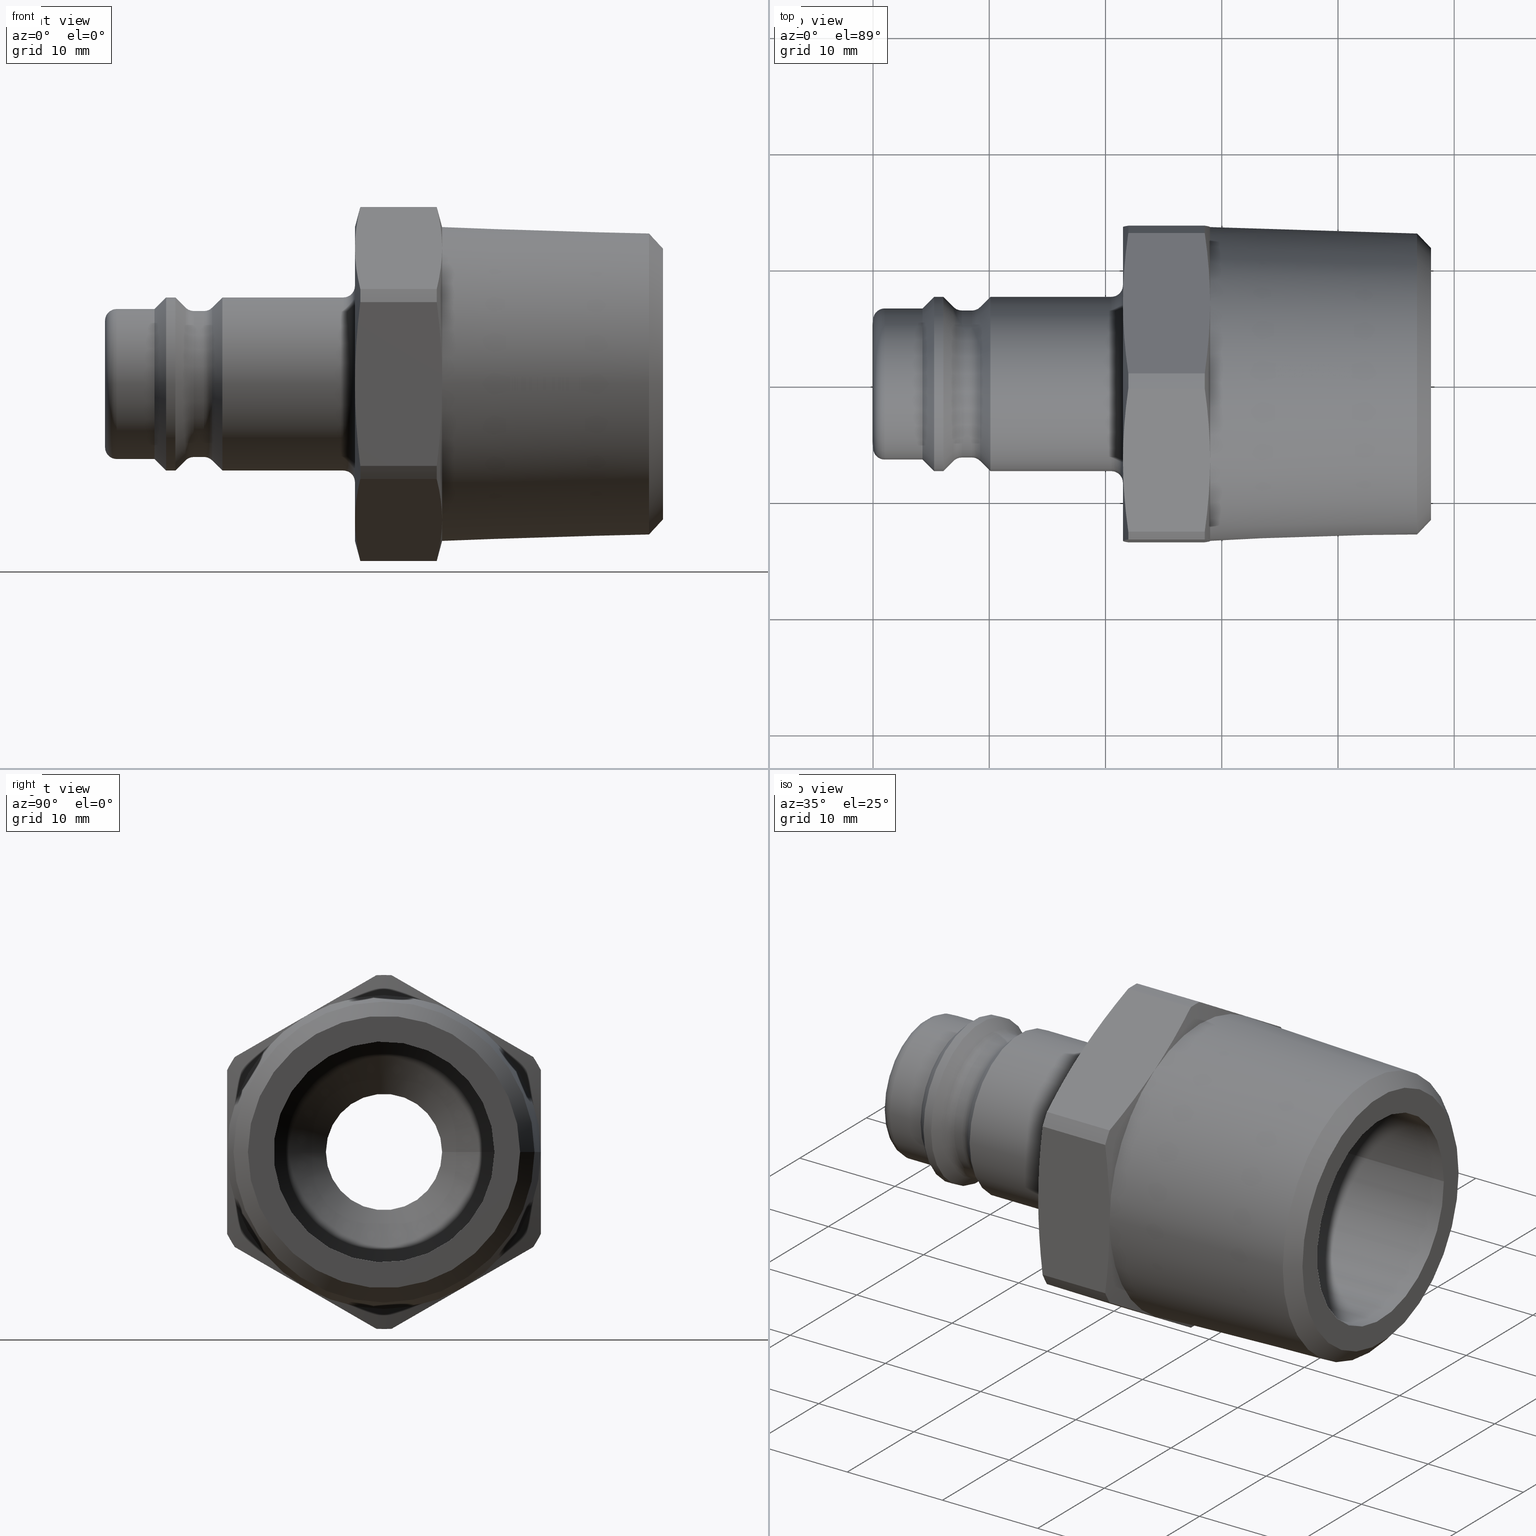
[diagram: canonical four-view strip — front | top / right | iso, engineering-drawing reading convention]
A machine part, canonical four-view strip (front | top / right | iso — engineering-drawing reading convention). The complete STEP part file that produces these views, byte-faithful:
ISO-10303-21;
HEADER;
/****************************************************************
 * Generated by software with PDE/Lib inside                    *
 * PDElib Version v51a, created Thu 01/14/2010                  *
 * ITI Transcendata (http://www.transcendata.com/)              *
 ****************************************************************/
FILE_DESCRIPTION((''),'2;1');
FILE_NAME('J:\\3D Zeichnungen_step\\Serie 27\\27sfak26sxn.stp','2013-05-28T13:29:26',('IA176480'),(''),'Autodesk Inventor 2011','Autodesk Inventor 2011','');
FILE_SCHEMA(('AUTOMOTIVE_DESIGN { 1 0 10303 214 1 1 1 1 }'));
ENDSEC;
DATA;
#5=APPLICATION_CONTEXT('automotive design');
#6=APPLICATION_PROTOCOL_DEFINITION('International Standard','automotive_design',2001,#5);
#7=PRODUCT_CONTEXT('',#5,'mechanical');
#8=PRODUCT('D106715','D106715',$,(#7));
#9=PRODUCT_RELATED_PRODUCT_CATEGORY('part',$,(#8));
#10=PRODUCT_DEFINITION_FORMATION('',$,#8);
#11=PRODUCT_DEFINITION_CONTEXT('part definition',#5,'design');
#12=PRODUCT_DEFINITION('',$,#10,#11);
#18=(NAMED_UNIT(*)PLANE_ANGLE_UNIT()SI_UNIT($,.RADIAN.));
#19=DIMENSIONAL_EXPONENTS(0.0,0.0,0.0,0.0,0.0,0.0,0.0);
#20=PLANE_ANGLE_MEASURE_WITH_UNIT(PLANE_ANGLE_MEASURE(0.017453292500000),#18);
#24=(CONVERSION_BASED_UNIT('DEGREE',#20)NAMED_UNIT(#19)PLANE_ANGLE_UNIT());
#28=(NAMED_UNIT(*)SI_UNIT($,.STERADIAN.)SOLID_ANGLE_UNIT());
#32=(LENGTH_UNIT()NAMED_UNIT(*)SI_UNIT(.MILLI.,.METRE.));
#34=UNCERTAINTY_MEASURE_WITH_UNIT(LENGTH_MEASURE(0.010000000000000),#32,'DISTANCE_ACCURACY_VALUE','');
#36=(GEOMETRIC_REPRESENTATION_CONTEXT(3)GLOBAL_UNCERTAINTY_ASSIGNED_CONTEXT((#34))GLOBAL_UNIT_ASSIGNED_CONTEXT((#24,#28,#32))REPRESENTATION_CONTEXT('None','None'));
#37=AXIS2_PLACEMENT_3D('',#38,#39,#40);
#38=CARTESIAN_POINT('',(0.0,0.0,0.0));
#39=DIRECTION('',(0.0,0.0,1.0));
#40=DIRECTION('',(1.0,0.0,0.0));
#41=SHAPE_REPRESENTATION('',(#37),#36);
#42=PRODUCT_DEFINITION_SHAPE('','',#12);
#43=SHAPE_DEFINITION_REPRESENTATION(#42,#41);
#49=(NAMED_UNIT(*)PLANE_ANGLE_UNIT()SI_UNIT($,.RADIAN.));
#50=DIMENSIONAL_EXPONENTS(0.0,0.0,0.0,0.0,0.0,0.0,0.0);
#51=PLANE_ANGLE_MEASURE_WITH_UNIT(PLANE_ANGLE_MEASURE(0.017453292500000),#49);
#55=(CONVERSION_BASED_UNIT('DEGREE',#51)NAMED_UNIT(#50)PLANE_ANGLE_UNIT());
#59=(NAMED_UNIT(*)SI_UNIT($,.STERADIAN.)SOLID_ANGLE_UNIT());
#63=(LENGTH_UNIT()NAMED_UNIT(*)SI_UNIT(.MILLI.,.METRE.));
#65=UNCERTAINTY_MEASURE_WITH_UNIT(LENGTH_MEASURE(0.000001000000000),#63,'DISTANCE_ACCURACY_VALUE','');
#67=(GEOMETRIC_REPRESENTATION_CONTEXT(3)GLOBAL_UNCERTAINTY_ASSIGNED_CONTEXT((#65))GLOBAL_UNIT_ASSIGNED_CONTEXT((#55,#59,#63))REPRESENTATION_CONTEXT('','3D'));
#68=CARTESIAN_POINT('',(29.438941219643269,6.749999999999991,-11.691342951089929));
#69=DIRECTION('',(0.0,-0.499999999999999,0.866025403784439));
#70=DIRECTION('',(0.0,-0.866025403784439,-0.499999999999999));
#71=AXIS2_PLACEMENT_3D('',#68,#69,#70);
#72=PLANE('',#71);
#73=CARTESIAN_POINT('',(21.962212356943684,12.846143760607999,-8.171732709884246));
#74=VERTEX_POINT('',#73);
#75=CARTESIAN_POINT('',(21.500000000000004,6.749999999999990,-11.691342951089929));
#76=VERTEX_POINT('',#75);
#77=CARTESIAN_POINT('',(21.962212356943684,12.846143760607987,-8.171732709884253));
#78=CARTESIAN_POINT('',(21.500000000000004,9.615028399241366,-10.037218033552005));
#79=CARTESIAN_POINT('',(21.500000000000004,6.749999999999990,-11.691342951089929));
#87=(BOUNDED_CURVE()B_SPLINE_CURVE(2,(#77,#78,#79),.UNSPECIFIED.,.F.,.U.)B_SPLINE_CURVE_WITH_KNOTS((3,3),(0.0,0.705781608914781),.UNSPECIFIED.)CURVE()GEOMETRIC_REPRESENTATION_ITEM()RATIONAL_B_SPLINE_CURVE((1.0,1.031449896451077,1.0))REPRESENTATION_ITEM(''));
#88=EDGE_CURVE('',#74,#76,#87,.T.);
#89=ORIENTED_EDGE('',*,*,#88,.F.);
#90=CARTESIAN_POINT('',(28.537787643056323,12.846143760607999,-8.171732709884246));
#91=VERTEX_POINT('',#90);
#92=CARTESIAN_POINT('',(28.537787643056323,12.846143760607999,-8.171732709884246));
#93=DIRECTION('',(-1.0,0.0,0.0));
#94=VECTOR('',#93,6.575575286112638);
#95=LINE('',#92,#94);
#96=EDGE_CURVE('',#91,#74,#95,.T.);
#97=ORIENTED_EDGE('',*,*,#96,.F.);
#98=CARTESIAN_POINT('',(28.999999999999865,6.749999999999990,-11.691342951089929));
#99=VERTEX_POINT('',#98);
#100=CARTESIAN_POINT('',(29.000000000000004,6.749999999999990,-11.691342951089929));
#101=CARTESIAN_POINT('',(29.000000000000004,9.615028399241405,-10.037218033551978));
#102=CARTESIAN_POINT('',(28.537787643056319,12.846143760608019,-8.171732709884232));
#110=(BOUNDED_CURVE()B_SPLINE_CURVE(2,(#100,#101,#102),.UNSPECIFIED.,.F.,.U.)B_SPLINE_CURVE_WITH_KNOTS((3,3),(0.705781608914785,1.411563217829570),.UNSPECIFIED.)CURVE()GEOMETRIC_REPRESENTATION_ITEM()RATIONAL_B_SPLINE_CURVE((1.0,1.031449896451022,1.0))REPRESENTATION_ITEM(''));
#111=EDGE_CURVE('',#99,#91,#110,.T.);
#112=ORIENTED_EDGE('',*,*,#111,.F.);
#113=CARTESIAN_POINT('',(28.537787643056323,0.653856239391981,-15.210953192295612));
#114=VERTEX_POINT('',#113);
#115=CARTESIAN_POINT('',(28.537787643056319,0.653856239391960,-15.210953192295626));
#116=CARTESIAN_POINT('',(29.000000000000004,3.884971600758574,-13.345467868627880));
#117=CARTESIAN_POINT('',(29.000000000000004,6.749999999999990,-11.691342951089929));
#125=(BOUNDED_CURVE()B_SPLINE_CURVE(2,(#115,#116,#117),.UNSPECIFIED.,.F.,.U.)B_SPLINE_CURVE_WITH_KNOTS((3,3),(0.0,0.705781608914785),.UNSPECIFIED.)CURVE()GEOMETRIC_REPRESENTATION_ITEM()RATIONAL_B_SPLINE_CURVE((1.0,1.031449896451015,1.0))REPRESENTATION_ITEM(''));
#126=EDGE_CURVE('',#114,#99,#125,.T.);
#127=ORIENTED_EDGE('',*,*,#126,.F.);
#128=CARTESIAN_POINT('',(21.962212356943684,0.653856239391981,-15.210953192295612));
#129=VERTEX_POINT('',#128);
#130=CARTESIAN_POINT('',(21.962212356943684,0.653856239391981,-15.210953192295612));
#131=DIRECTION('',(1.0,0.0,0.0));
#132=VECTOR('',#131,6.575575286112638);
#133=LINE('',#130,#132);
#134=EDGE_CURVE('',#129,#114,#133,.T.);
#135=ORIENTED_EDGE('',*,*,#134,.F.);
#136=CARTESIAN_POINT('',(21.500000000000004,6.749999999999990,-11.691342951089929));
#137=CARTESIAN_POINT('',(21.500000000000004,3.884971600758613,-13.345467868627853));
#138=CARTESIAN_POINT('',(21.962212356943684,0.653856239391996,-15.210953192295607));
#146=(BOUNDED_CURVE()B_SPLINE_CURVE(2,(#136,#137,#138),.UNSPECIFIED.,.F.,.U.)B_SPLINE_CURVE_WITH_KNOTS((3,3),(0.705781608914781,1.411563217829562),.UNSPECIFIED.)CURVE()GEOMETRIC_REPRESENTATION_ITEM()RATIONAL_B_SPLINE_CURVE((1.0,1.031449896451077,1.0))REPRESENTATION_ITEM(''));
#147=EDGE_CURVE('',#76,#129,#146,.T.);
#148=ORIENTED_EDGE('',*,*,#147,.F.);
#149=EDGE_LOOP('',(#89,#97,#112,#127,#135,#148));
#150=FACE_OUTER_BOUND('',#149,.T.);
#151=ADVANCED_FACE('',(#150),#72,.F.);
#152=CARTESIAN_POINT('',(29.438941219643269,-6.750000000000006,-11.691342951089920));
#153=DIRECTION('',(0.0,0.500000000000000,0.866025403784438));
#154=DIRECTION('',(0.0,-0.866025403784438,0.500000000000000));
#155=AXIS2_PLACEMENT_3D('',#152,#153,#154);
#156=PLANE('',#155);
#157=CARTESIAN_POINT('',(21.962212356943684,-0.653856239392003,-15.210953192295612));
#158=VERTEX_POINT('',#157);
#159=CARTESIAN_POINT('',(21.500000000000004,-6.750000000000007,-11.691342951089920));
#160=VERTEX_POINT('',#159);
#161=CARTESIAN_POINT('',(21.962212356943684,-0.653856239392012,-15.210953192295607));
#162=CARTESIAN_POINT('',(21.500000000000004,-3.884971600758643,-13.345467868627845));
#163=CARTESIAN_POINT('',(21.500000000000004,-6.750000000000011,-11.691342951089919));
#171=(BOUNDED_CURVE()B_SPLINE_CURVE(2,(#161,#162,#163),.UNSPECIFIED.,.F.,.U.)B_SPLINE_CURVE_WITH_KNOTS((3,3),(0.0,0.705781608914782),.UNSPECIFIED.)CURVE()GEOMETRIC_REPRESENTATION_ITEM()RATIONAL_B_SPLINE_CURVE((1.0,1.031449896451086,1.0))REPRESENTATION_ITEM(''));
#172=EDGE_CURVE('',#158,#160,#171,.T.);
#173=ORIENTED_EDGE('',*,*,#172,.F.);
#174=CARTESIAN_POINT('',(28.537787643056323,-0.653856239392003,-15.210953192295612));
#175=VERTEX_POINT('',#174);
#176=CARTESIAN_POINT('',(28.537787643056323,-0.653856239392003,-15.210953192295612));
#177=DIRECTION('',(-1.0,0.0,0.0));
#178=VECTOR('',#177,6.575575286112638);
#179=LINE('',#176,#178);
#180=EDGE_CURVE('',#175,#158,#179,.T.);
#181=ORIENTED_EDGE('',*,*,#180,.F.);
#182=CARTESIAN_POINT('',(29.000000000000028,-6.750000000000008,-11.691342951089919));
#183=VERTEX_POINT('',#182);
#184=CARTESIAN_POINT('',(29.000000000000004,-6.750000000000011,-11.691342951089919));
#185=CARTESIAN_POINT('',(29.0,-3.884971600758653,-13.345467868627841));
#186=CARTESIAN_POINT('',(28.537787643056319,-0.653856239391976,-15.210953192295628));
#194=(BOUNDED_CURVE()B_SPLINE_CURVE(2,(#184,#185,#186),.UNSPECIFIED.,.F.,.U.)B_SPLINE_CURVE_WITH_KNOTS((3,3),(0.705781608914785,1.411563217829571),.UNSPECIFIED.)CURVE()GEOMETRIC_REPRESENTATION_ITEM()RATIONAL_B_SPLINE_CURVE((1.0,1.031449896451047,1.0))REPRESENTATION_ITEM(''));
#195=EDGE_CURVE('',#183,#175,#194,.T.);
#196=ORIENTED_EDGE('',*,*,#195,.F.);
#197=CARTESIAN_POINT('',(28.537787643056323,-12.846143760608012,-8.171732709884228));
#198=VERTEX_POINT('',#197);
#199=CARTESIAN_POINT('',(28.537787643056319,-12.846143760608033,-8.171732709884212));
#200=CARTESIAN_POINT('',(29.000000000000007,-9.615028399241364,-10.037218033551998));
#201=CARTESIAN_POINT('',(29.000000000000004,-6.750000000000011,-11.691342951089919));
#209=(BOUNDED_CURVE()B_SPLINE_CURVE(2,(#199,#200,#201),.UNSPECIFIED.,.F.,.U.)B_SPLINE_CURVE_WITH_KNOTS((3,3),(0.0,0.705781608914785),.UNSPECIFIED.)CURVE()GEOMETRIC_REPRESENTATION_ITEM()RATIONAL_B_SPLINE_CURVE((1.0,1.031449896451024,1.0))REPRESENTATION_ITEM(''));
#210=EDGE_CURVE('',#198,#183,#209,.T.);
#211=ORIENTED_EDGE('',*,*,#210,.F.);
#212=CARTESIAN_POINT('',(21.962212356943684,-12.846143760608012,-8.171732709884228));
#213=VERTEX_POINT('',#212);
#214=CARTESIAN_POINT('',(21.962212356943684,-12.846143760608012,-8.171732709884228));
#215=DIRECTION('',(1.0,0.0,0.0));
#216=VECTOR('',#215,6.575575286112638);
#217=LINE('',#214,#216);
#218=EDGE_CURVE('',#213,#198,#217,.T.);
#219=ORIENTED_EDGE('',*,*,#218,.F.);
#220=CARTESIAN_POINT('',(21.500000000000004,-6.750000000000011,-11.691342951089919));
#221=CARTESIAN_POINT('',(21.500000000000004,-9.615028399241318,-10.037218033552024));
#222=CARTESIAN_POINT('',(21.962212356943684,-12.846143760607998,-8.171732709884235));
#230=(BOUNDED_CURVE()B_SPLINE_CURVE(2,(#220,#221,#222),.UNSPECIFIED.,.F.,.U.)B_SPLINE_CURVE_WITH_KNOTS((3,3),(0.705781608914782,1.411563217829562),.UNSPECIFIED.)CURVE()GEOMETRIC_REPRESENTATION_ITEM()RATIONAL_B_SPLINE_CURVE((1.0,1.031449896451067,1.0))REPRESENTATION_ITEM(''));
#231=EDGE_CURVE('',#160,#213,#230,.T.);
#232=ORIENTED_EDGE('',*,*,#231,.F.);
#233=EDGE_LOOP('',(#173,#181,#196,#211,#219,#232));
#234=FACE_OUTER_BOUND('',#233,.T.);
#235=ADVANCED_FACE('',(#234),#156,.F.);
#236=CARTESIAN_POINT('',(29.438941219643269,-13.500000000000000,1.110223E-015));
#237=DIRECTION('',(0.0,1.0,0.0));
#238=DIRECTION('',(0.0,0.0,1.0));
#239=AXIS2_PLACEMENT_3D('',#236,#237,#238);
#240=PLANE('',#239);
#241=CARTESIAN_POINT('',(21.962212356943684,-13.500000000000004,-7.039220482411382));
#242=VERTEX_POINT('',#241);
#243=CARTESIAN_POINT('',(21.500000000000004,-13.500000000000000,2.248202E-015));
#244=VERTEX_POINT('',#243);
#245=CARTESIAN_POINT('',(21.962212356943684,-13.500000000000004,-7.039220482411360));
#246=CARTESIAN_POINT('',(21.500000000000004,-13.500000000000000,-3.308249835075842));
#247=CARTESIAN_POINT('',(21.500000000000000,-13.500000000000000,2.248202E-015));
#255=(BOUNDED_CURVE()B_SPLINE_CURVE(2,(#245,#246,#247),.UNSPECIFIED.,.F.,.U.)B_SPLINE_CURVE_WITH_KNOTS((3,3),(0.0,0.705781608914781),.UNSPECIFIED.)CURVE()GEOMETRIC_REPRESENTATION_ITEM()RATIONAL_B_SPLINE_CURVE((1.0,1.031449896451090,1.0))REPRESENTATION_ITEM(''));
#256=EDGE_CURVE('',#242,#244,#255,.T.);
#257=ORIENTED_EDGE('',*,*,#256,.F.);
#258=CARTESIAN_POINT('',(28.537787643056323,-13.500000000000004,-7.039220482411382));
#259=VERTEX_POINT('',#258);
#260=CARTESIAN_POINT('',(28.537787643056323,-13.500000000000004,-7.039220482411382));
#261=DIRECTION('',(-1.0,0.0,0.0));
#262=VECTOR('',#261,6.575575286112638);
#263=LINE('',#260,#262);
#264=EDGE_CURVE('',#259,#242,#263,.T.);
#265=ORIENTED_EDGE('',*,*,#264,.F.);
#266=CARTESIAN_POINT('',(29.000000000000039,-13.499999999999998,2.248202E-015));
#267=VERTEX_POINT('',#266);
#268=CARTESIAN_POINT('',(29.000000000000007,-13.500000000000000,2.248202E-015));
#269=CARTESIAN_POINT('',(29.000000000000014,-13.500000000000000,-3.308249835075886));
#270=CARTESIAN_POINT('',(28.537787643056319,-13.500000000000000,-7.039220482411403));
#278=(BOUNDED_CURVE()B_SPLINE_CURVE(2,(#268,#269,#270),.UNSPECIFIED.,.F.,.U.)B_SPLINE_CURVE_WITH_KNOTS((3,3),(0.705781608914785,1.411563217829570),.UNSPECIFIED.)CURVE()GEOMETRIC_REPRESENTATION_ITEM()RATIONAL_B_SPLINE_CURVE((1.0,1.031449896451026,1.0))REPRESENTATION_ITEM(''));
#279=EDGE_CURVE('',#267,#259,#278,.T.);
#280=ORIENTED_EDGE('',*,*,#279,.F.);
#281=CARTESIAN_POINT('',(28.537787643056323,-13.499999999999998,7.039220482411387));
#282=VERTEX_POINT('',#281);
#283=CARTESIAN_POINT('',(28.537787643056319,-13.500000000000000,7.039220482411405));
#284=CARTESIAN_POINT('',(29.000000000000004,-13.500000000000000,3.308249835075890));
#285=CARTESIAN_POINT('',(29.000000000000007,-13.500000000000000,2.248202E-015));
#293=(BOUNDED_CURVE()B_SPLINE_CURVE(2,(#283,#284,#285),.UNSPECIFIED.,.F.,.U.)B_SPLINE_CURVE_WITH_KNOTS((3,3),(0.0,0.705781608914785),.UNSPECIFIED.)CURVE()GEOMETRIC_REPRESENTATION_ITEM()RATIONAL_B_SPLINE_CURVE((1.0,1.031449896451026,1.0))REPRESENTATION_ITEM(''));
#294=EDGE_CURVE('',#282,#267,#293,.T.);
#295=ORIENTED_EDGE('',*,*,#294,.F.);
#296=CARTESIAN_POINT('',(21.962212356943684,-13.499999999999998,7.039220482411387));
#297=VERTEX_POINT('',#296);
#298=CARTESIAN_POINT('',(21.962212356943684,-13.499999999999998,7.039220482411387));
#299=DIRECTION('',(1.0,0.0,0.0));
#300=VECTOR('',#299,6.575575286112638);
#301=LINE('',#298,#300);
#302=EDGE_CURVE('',#297,#282,#301,.T.);
#303=ORIENTED_EDGE('',*,*,#302,.F.);
#304=CARTESIAN_POINT('',(21.500000000000000,-13.500000000000000,2.248202E-015));
#305=CARTESIAN_POINT('',(21.499999999999993,-13.500000000000000,3.308249835075847));
#306=CARTESIAN_POINT('',(21.962212356943684,-13.500000000000000,7.039220482411364));
#314=(BOUNDED_CURVE()B_SPLINE_CURVE(2,(#304,#305,#306),.UNSPECIFIED.,.F.,.U.)B_SPLINE_CURVE_WITH_KNOTS((3,3),(0.705781608914781,1.411563217829561),.UNSPECIFIED.)CURVE()GEOMETRIC_REPRESENTATION_ITEM()RATIONAL_B_SPLINE_CURVE((1.0,1.031449896451088,1.0))REPRESENTATION_ITEM(''));
#315=EDGE_CURVE('',#244,#297,#314,.T.);
#316=ORIENTED_EDGE('',*,*,#315,.F.);
#317=EDGE_LOOP('',(#257,#265,#280,#295,#303,#316));
#318=FACE_OUTER_BOUND('',#317,.T.);
#319=ADVANCED_FACE('',(#318),#240,.F.);
#320=CARTESIAN_POINT('',(29.438941219643269,-6.749999999999998,11.691342951089926));
#321=DIRECTION('',(0.0,0.500000000000000,-0.866025403784439));
#322=DIRECTION('',(0.0,0.866025403784439,0.500000000000000));
#323=AXIS2_PLACEMENT_3D('',#320,#321,#322);
#324=PLANE('',#323);
#325=CARTESIAN_POINT('',(21.962212356943684,-12.846143760608012,8.171732709884234));
#326=VERTEX_POINT('',#325);
#327=CARTESIAN_POINT('',(21.500000000000004,-6.749999999999998,11.691342951089926));
#328=VERTEX_POINT('',#327);
#329=CARTESIAN_POINT('',(21.962212356943684,-12.846143760607994,8.171732709884244));
#330=CARTESIAN_POINT('',(21.500000000000000,-9.615028399241343,10.037218033552014));
#331=CARTESIAN_POINT('',(21.500000000000000,-6.749999999999996,11.691342951089926));
#339=(BOUNDED_CURVE()B_SPLINE_CURVE(2,(#329,#330,#331),.UNSPECIFIED.,.F.,.U.)B_SPLINE_CURVE_WITH_KNOTS((3,3),(0.0,0.705781608914781),.UNSPECIFIED.)CURVE()GEOMETRIC_REPRESENTATION_ITEM()RATIONAL_B_SPLINE_CURVE((1.0,1.031449896451053,1.0))REPRESENTATION_ITEM(''));
#340=EDGE_CURVE('',#326,#328,#339,.T.);
#341=ORIENTED_EDGE('',*,*,#340,.F.);
#342=CARTESIAN_POINT('',(28.537787643056323,-12.846143760608012,8.171732709884234));
#343=VERTEX_POINT('',#342);
#344=CARTESIAN_POINT('',(28.537787643056323,-12.846143760608012,8.171732709884234));
#345=DIRECTION('',(-1.0,0.0,0.0));
#346=VECTOR('',#345,6.575575286112638);
#347=LINE('',#344,#346);
#348=EDGE_CURVE('',#343,#326,#347,.T.);
#349=ORIENTED_EDGE('',*,*,#348,.F.);
#350=CARTESIAN_POINT('',(28.999999999999929,-6.749999999999996,11.691342951089926));
#351=VERTEX_POINT('',#350);
#352=CARTESIAN_POINT('',(29.000000000000007,-6.749999999999996,11.691342951089926));
#353=CARTESIAN_POINT('',(29.000000000000007,-9.615028399241325,10.037218033552019));
#354=CARTESIAN_POINT('',(28.537787643056319,-12.846143760608019,8.171732709884228));
#362=(BOUNDED_CURVE()B_SPLINE_CURVE(2,(#352,#353,#354),.UNSPECIFIED.,.F.,.U.)B_SPLINE_CURVE_WITH_KNOTS((3,3),(0.705781608914784,1.411563217829568),.UNSPECIFIED.)CURVE()GEOMETRIC_REPRESENTATION_ITEM()RATIONAL_B_SPLINE_CURVE((1.0,1.031449896451046,1.0))REPRESENTATION_ITEM(''));
#363=EDGE_CURVE('',#351,#343,#362,.T.);
#364=ORIENTED_EDGE('',*,*,#363,.F.);
#365=CARTESIAN_POINT('',(28.537787643056323,-0.653856239391987,15.210953192295616));
#366=VERTEX_POINT('',#365);
#367=CARTESIAN_POINT('',(28.537787643056319,-0.653856239391975,15.210953192295623));
#368=CARTESIAN_POINT('',(29.000000000000007,-3.884971600758667,13.345467868627829));
#369=CARTESIAN_POINT('',(29.000000000000007,-6.749999999999996,11.691342951089926));
#377=(BOUNDED_CURVE()B_SPLINE_CURVE(2,(#367,#368,#369),.UNSPECIFIED.,.F.,.U.)B_SPLINE_CURVE_WITH_KNOTS((3,3),(0.0,0.705781608914784),.UNSPECIFIED.)CURVE()GEOMETRIC_REPRESENTATION_ITEM()RATIONAL_B_SPLINE_CURVE((1.0,1.031449896451039,1.0))REPRESENTATION_ITEM(''));
#378=EDGE_CURVE('',#366,#351,#377,.T.);
#379=ORIENTED_EDGE('',*,*,#378,.F.);
#380=CARTESIAN_POINT('',(21.962212356943684,-0.653856239391987,15.210953192295616));
#381=VERTEX_POINT('',#380);
#382=CARTESIAN_POINT('',(21.962212356943684,-0.653856239391987,15.210953192295616));
#383=DIRECTION('',(1.0,0.0,0.0));
#384=VECTOR('',#383,6.575575286112638);
#385=LINE('',#382,#384);
#386=EDGE_CURVE('',#381,#366,#385,.T.);
#387=ORIENTED_EDGE('',*,*,#386,.F.);
#388=CARTESIAN_POINT('',(21.500000000000000,-6.749999999999996,11.691342951089926));
#389=CARTESIAN_POINT('',(21.500000000000000,-3.884971600758651,13.345467868627836));
#390=CARTESIAN_POINT('',(21.962212356943684,-0.653856239391998,15.210953192295609));
#398=(BOUNDED_CURVE()B_SPLINE_CURVE(2,(#388,#389,#390),.UNSPECIFIED.,.F.,.U.)B_SPLINE_CURVE_WITH_KNOTS((3,3),(0.705781608914781,1.411563217829563),.UNSPECIFIED.)CURVE()GEOMETRIC_REPRESENTATION_ITEM()RATIONAL_B_SPLINE_CURVE((1.0,1.031449896451048,1.0))REPRESENTATION_ITEM(''));
#399=EDGE_CURVE('',#328,#381,#398,.T.);
#400=ORIENTED_EDGE('',*,*,#399,.F.);
#401=EDGE_LOOP('',(#341,#349,#364,#379,#387,#400));
#402=FACE_OUTER_BOUND('',#401,.T.);
#403=ADVANCED_FACE('',(#402),#324,.F.);
#404=CARTESIAN_POINT('',(29.438941219643269,6.750000000000002,11.691342951089922));
#405=DIRECTION('',(0.0,-0.500000000000000,-0.866025403784439));
#406=DIRECTION('',(0.0,0.866025403784439,-0.500000000000000));
#407=AXIS2_PLACEMENT_3D('',#404,#405,#406);
#408=PLANE('',#407);
#409=CARTESIAN_POINT('',(21.962212356943684,0.653856239391991,15.210953192295616));
#410=VERTEX_POINT('',#409);
#411=CARTESIAN_POINT('',(21.500000000000004,6.750000000000002,11.691342951089922));
#412=VERTEX_POINT('',#411);
#413=CARTESIAN_POINT('',(21.962212356943684,0.653856239392011,15.210953192295605));
#414=CARTESIAN_POINT('',(21.500000000000000,3.884971600758680,13.345467868627823));
#415=CARTESIAN_POINT('',(21.500000000000004,6.750000000000002,11.691342951089922));
#423=(BOUNDED_CURVE()B_SPLINE_CURVE(2,(#413,#414,#415),.UNSPECIFIED.,.F.,.U.)B_SPLINE_CURVE_WITH_KNOTS((3,3),(0.0,0.705781608914781),.UNSPECIFIED.)CURVE()GEOMETRIC_REPRESENTATION_ITEM()RATIONAL_B_SPLINE_CURVE((1.0,1.031449896451062,1.0))REPRESENTATION_ITEM(''));
#424=EDGE_CURVE('',#410,#412,#423,.T.);
#425=ORIENTED_EDGE('',*,*,#424,.F.);
#426=CARTESIAN_POINT('',(28.537787643056323,0.653856239391991,15.210953192295616));
#427=VERTEX_POINT('',#426);
#428=CARTESIAN_POINT('',(28.537787643056323,0.653856239391991,15.210953192295616));
#429=DIRECTION('',(-1.0,0.0,0.0));
#430=VECTOR('',#429,6.575575286112638);
#431=LINE('',#428,#430);
#432=EDGE_CURVE('',#427,#410,#431,.T.);
#433=ORIENTED_EDGE('',*,*,#432,.F.);
#434=CARTESIAN_POINT('',(28.999999999999950,6.750000000000003,11.691342951089922));
#435=VERTEX_POINT('',#434);
#436=CARTESIAN_POINT('',(29.000000000000004,6.750000000000002,11.691342951089922));
#437=CARTESIAN_POINT('',(29.0,3.884971600758637,13.345467868627846));
#438=CARTESIAN_POINT('',(28.537787643056319,0.653856239391978,15.210953192295625));
#446=(BOUNDED_CURVE()B_SPLINE_CURVE(2,(#436,#437,#438),.UNSPECIFIED.,.F.,.U.)B_SPLINE_CURVE_WITH_KNOTS((3,3),(0.705781608914785,1.411563217829570),.UNSPECIFIED.)CURVE()GEOMETRIC_REPRESENTATION_ITEM()RATIONAL_B_SPLINE_CURVE((1.0,1.031449896451028,1.0))REPRESENTATION_ITEM(''));
#447=EDGE_CURVE('',#435,#427,#446,.T.);
#448=ORIENTED_EDGE('',*,*,#447,.F.);
#449=CARTESIAN_POINT('',(28.537787643056323,12.846143760608012,8.171732709884230));
#450=VERTEX_POINT('',#449);
#451=CARTESIAN_POINT('',(28.537787643056319,12.846143760608031,8.171732709884218));
#452=CARTESIAN_POINT('',(29.000000000000007,9.615028399241369,10.037218033551996));
#453=CARTESIAN_POINT('',(29.000000000000004,6.750000000000002,11.691342951089922));
#461=(BOUNDED_CURVE()B_SPLINE_CURVE(2,(#451,#452,#453),.UNSPECIFIED.,.F.,.U.)B_SPLINE_CURVE_WITH_KNOTS((3,3),(0.0,0.705781608914785),.UNSPECIFIED.)CURVE()GEOMETRIC_REPRESENTATION_ITEM()RATIONAL_B_SPLINE_CURVE((1.0,1.031449896451024,1.0))REPRESENTATION_ITEM(''));
#462=EDGE_CURVE('',#450,#435,#461,.T.);
#463=ORIENTED_EDGE('',*,*,#462,.F.);
#464=CARTESIAN_POINT('',(21.962212356943684,12.846143760608012,8.171732709884230));
#465=VERTEX_POINT('',#464);
#466=CARTESIAN_POINT('',(21.962212356943684,12.846143760608012,8.171732709884230));
#467=DIRECTION('',(1.0,0.0,0.0));
#468=VECTOR('',#467,6.575575286112638);
#469=LINE('',#466,#468);
#470=EDGE_CURVE('',#465,#450,#469,.T.);
#471=ORIENTED_EDGE('',*,*,#470,.F.);
#472=CARTESIAN_POINT('',(21.500000000000004,6.750000000000002,11.691342951089922));
#473=CARTESIAN_POINT('',(21.500000000000007,9.615028399241325,10.037218033552019));
#474=CARTESIAN_POINT('',(21.962212356943684,12.846143760607994,8.171732709884241));
#482=(BOUNDED_CURVE()B_SPLINE_CURVE(2,(#472,#473,#474),.UNSPECIFIED.,.F.,.U.)B_SPLINE_CURVE_WITH_KNOTS((3,3),(0.705781608914781,1.411563217829561),.UNSPECIFIED.)CURVE()GEOMETRIC_REPRESENTATION_ITEM()RATIONAL_B_SPLINE_CURVE((1.0,1.031449896451067,1.0))REPRESENTATION_ITEM(''));
#483=EDGE_CURVE('',#412,#465,#482,.T.);
#484=ORIENTED_EDGE('',*,*,#483,.F.);
#485=EDGE_LOOP('',(#425,#433,#448,#463,#471,#484));
#486=FACE_OUTER_BOUND('',#485,.T.);
#487=ADVANCED_FACE('',(#486),#408,.F.);
#488=CARTESIAN_POINT('',(28.768893821528163,0.0,0.0));
#489=DIRECTION('',(-1.0,0.0,0.0));
#490=DIRECTION('',(0.0,1.0,0.0));
#491=AXIS2_PLACEMENT_3D('',#488,#489,#490);
#492=CONICAL_SURFACE('',#491,14.362500000000001,75.000000000000043);
#493=ORIENTED_EDGE('',*,*,#462,.T.);
#494=CARTESIAN_POINT('',(29.000000000000004,13.500000000000000,0.0));
#495=VERTEX_POINT('',#494);
#496=CARTESIAN_POINT('',(29.000000000000004,0.0,0.0));
#497=DIRECTION('',(1.0,0.0,0.0));
#498=DIRECTION('',(0.0,1.0,0.0));
#499=AXIS2_PLACEMENT_3D('',#496,#497,#498);
#500=CIRCLE('',#499,13.500000000000000);
#501=EDGE_CURVE('',#495,#435,#500,.T.);
#502=ORIENTED_EDGE('',*,*,#501,.F.);
#503=CARTESIAN_POINT('',(28.537787643056323,13.500000000000000,7.039220482411385));
#504=VERTEX_POINT('',#503);
#505=CARTESIAN_POINT('',(29.000000000000007,13.500000000000000,0.0));
#506=CARTESIAN_POINT('',(29.000000000000014,13.500000000000000,3.308249835075888));
#507=CARTESIAN_POINT('',(28.537787643056319,13.500000000000000,7.039220482411404));
#515=(BOUNDED_CURVE()B_SPLINE_CURVE(2,(#505,#506,#507),.UNSPECIFIED.,.F.,.U.)B_SPLINE_CURVE_WITH_KNOTS((3,3),(0.705781608914785,1.411563217829570),.UNSPECIFIED.)CURVE()GEOMETRIC_REPRESENTATION_ITEM()RATIONAL_B_SPLINE_CURVE((1.0,1.031449896451026,1.0))REPRESENTATION_ITEM(''));
#516=EDGE_CURVE('',#495,#504,#515,.T.);
#517=ORIENTED_EDGE('',*,*,#516,.T.);
#518=CARTESIAN_POINT('',(28.537787643056319,0.0,0.0));
#519=DIRECTION('',(1.0,0.0,0.0));
#520=DIRECTION('',(0.0,1.0,0.0));
#521=AXIS2_PLACEMENT_3D('',#518,#519,#520);
#522=CIRCLE('',#521,15.225000000000000);
#523=EDGE_CURVE('',#504,#450,#522,.T.);
#524=ORIENTED_EDGE('',*,*,#523,.T.);
#525=EDGE_LOOP('',(#493,#502,#517,#524));
#526=FACE_OUTER_BOUND('',#525,.T.);
#527=ADVANCED_FACE('',(#526),#492,.T.);
#528=CARTESIAN_POINT('',(28.768893821528163,0.0,0.0));
#529=DIRECTION('',(-1.0,0.0,0.0));
#530=DIRECTION('',(0.0,1.0,0.0));
#531=AXIS2_PLACEMENT_3D('',#528,#529,#530);
#532=CONICAL_SURFACE('',#531,14.362500000000001,75.000000000000043);
#533=ORIENTED_EDGE('',*,*,#378,.T.);
#534=CARTESIAN_POINT('',(29.000000000000004,0.0,0.0));
#535=DIRECTION('',(1.0,0.0,0.0));
#536=DIRECTION('',(0.0,1.0,0.0));
#537=AXIS2_PLACEMENT_3D('',#534,#535,#536);
#538=CIRCLE('',#537,13.500000000000000);
#539=EDGE_CURVE('',#435,#351,#538,.T.);
#540=ORIENTED_EDGE('',*,*,#539,.F.);
#541=ORIENTED_EDGE('',*,*,#447,.T.);
#542=CARTESIAN_POINT('',(28.537787643056319,0.0,0.0));
#543=DIRECTION('',(1.0,0.0,0.0));
#544=DIRECTION('',(0.0,1.0,0.0));
#545=AXIS2_PLACEMENT_3D('',#542,#543,#544);
#546=CIRCLE('',#545,15.225000000000000);
#547=EDGE_CURVE('',#427,#366,#546,.T.);
#548=ORIENTED_EDGE('',*,*,#547,.T.);
#549=EDGE_LOOP('',(#533,#540,#541,#548));
#550=FACE_OUTER_BOUND('',#549,.T.);
#551=ADVANCED_FACE('',(#550),#532,.T.);
#552=CARTESIAN_POINT('',(28.768893821528163,0.0,0.0));
#553=DIRECTION('',(-1.0,0.0,0.0));
#554=DIRECTION('',(0.0,1.0,0.0));
#555=AXIS2_PLACEMENT_3D('',#552,#553,#554);
#556=CONICAL_SURFACE('',#555,14.362500000000001,75.000000000000043);
#557=ORIENTED_EDGE('',*,*,#294,.T.);
#558=CARTESIAN_POINT('',(29.000000000000004,0.0,0.0));
#559=DIRECTION('',(1.0,0.0,0.0));
#560=DIRECTION('',(0.0,1.0,0.0));
#561=AXIS2_PLACEMENT_3D('',#558,#559,#560);
#562=CIRCLE('',#561,13.500000000000000);
#563=EDGE_CURVE('',#351,#267,#562,.T.);
#564=ORIENTED_EDGE('',*,*,#563,.F.);
#565=ORIENTED_EDGE('',*,*,#363,.T.);
#566=CARTESIAN_POINT('',(28.537787643056319,0.0,0.0));
#567=DIRECTION('',(1.0,0.0,0.0));
#568=DIRECTION('',(0.0,1.0,0.0));
#569=AXIS2_PLACEMENT_3D('',#566,#567,#568);
#570=CIRCLE('',#569,15.225000000000000);
#571=EDGE_CURVE('',#343,#282,#570,.T.);
#572=ORIENTED_EDGE('',*,*,#571,.T.);
#573=EDGE_LOOP('',(#557,#564,#565,#572));
#574=FACE_OUTER_BOUND('',#573,.T.);
#575=ADVANCED_FACE('',(#574),#556,.T.);
#576=CARTESIAN_POINT('',(28.768893821528163,0.0,0.0));
#577=DIRECTION('',(-1.0,0.0,0.0));
#578=DIRECTION('',(0.0,1.0,0.0));
#579=AXIS2_PLACEMENT_3D('',#576,#577,#578);
#580=CONICAL_SURFACE('',#579,14.362500000000001,75.000000000000043);
#581=ORIENTED_EDGE('',*,*,#210,.T.);
#582=CARTESIAN_POINT('',(29.000000000000004,0.0,0.0));
#583=DIRECTION('',(1.0,0.0,0.0));
#584=DIRECTION('',(0.0,1.0,0.0));
#585=AXIS2_PLACEMENT_3D('',#582,#583,#584);
#586=CIRCLE('',#585,13.500000000000000);
#587=EDGE_CURVE('',#267,#183,#586,.T.);
#588=ORIENTED_EDGE('',*,*,#587,.F.);
#589=ORIENTED_EDGE('',*,*,#279,.T.);
#590=CARTESIAN_POINT('',(28.537787643056319,0.0,0.0));
#591=DIRECTION('',(1.0,0.0,0.0));
#592=DIRECTION('',(0.0,1.0,0.0));
#593=AXIS2_PLACEMENT_3D('',#590,#591,#592);
#594=CIRCLE('',#593,15.225000000000000);
#595=EDGE_CURVE('',#259,#198,#594,.T.);
#596=ORIENTED_EDGE('',*,*,#595,.T.);
#597=EDGE_LOOP('',(#581,#588,#589,#596));
#598=FACE_OUTER_BOUND('',#597,.T.);
#599=ADVANCED_FACE('',(#598),#580,.T.);
#600=CARTESIAN_POINT('',(28.768893821528163,0.0,0.0));
#601=DIRECTION('',(-1.0,0.0,0.0));
#602=DIRECTION('',(0.0,1.0,0.0));
#603=AXIS2_PLACEMENT_3D('',#600,#601,#602);
#604=CONICAL_SURFACE('',#603,14.362500000000001,75.000000000000043);
#605=ORIENTED_EDGE('',*,*,#111,.T.);
#606=CARTESIAN_POINT('',(28.537787643056323,13.500000000000000,-7.039220482411385));
#607=VERTEX_POINT('',#606);
#608=CARTESIAN_POINT('',(28.537787643056319,0.0,0.0));
#609=DIRECTION('',(1.0,0.0,0.0));
#610=DIRECTION('',(0.0,1.0,0.0));
#611=AXIS2_PLACEMENT_3D('',#608,#609,#610);
#612=CIRCLE('',#611,15.225000000000000);
#613=EDGE_CURVE('',#91,#607,#612,.T.);
#614=ORIENTED_EDGE('',*,*,#613,.T.);
#615=CARTESIAN_POINT('',(28.537787643056319,13.500000000000000,-7.039220482411404));
#616=CARTESIAN_POINT('',(29.000000000000004,13.500000000000000,-3.308249835075888));
#617=CARTESIAN_POINT('',(29.000000000000007,13.500000000000000,0.0));
#625=(BOUNDED_CURVE()B_SPLINE_CURVE(2,(#615,#616,#617),.UNSPECIFIED.,.F.,.U.)B_SPLINE_CURVE_WITH_KNOTS((3,3),(0.0,0.705781608914785),.UNSPECIFIED.)CURVE()GEOMETRIC_REPRESENTATION_ITEM()RATIONAL_B_SPLINE_CURVE((1.0,1.031449896451026,1.0))REPRESENTATION_ITEM(''));
#626=EDGE_CURVE('',#607,#495,#625,.T.);
#627=ORIENTED_EDGE('',*,*,#626,.T.);
#628=CARTESIAN_POINT('',(29.000000000000004,0.0,0.0));
#629=DIRECTION('',(1.0,0.0,0.0));
#630=DIRECTION('',(0.0,1.0,0.0));
#631=AXIS2_PLACEMENT_3D('',#628,#629,#630);
#632=CIRCLE('',#631,13.500000000000000);
#633=EDGE_CURVE('',#99,#495,#632,.T.);
#634=ORIENTED_EDGE('',*,*,#633,.F.);
#635=EDGE_LOOP('',(#605,#614,#627,#634));
#636=FACE_OUTER_BOUND('',#635,.T.);
#637=ADVANCED_FACE('',(#636),#604,.T.);
#638=CARTESIAN_POINT('',(28.768893821528163,0.0,0.0));
#639=DIRECTION('',(-1.0,0.0,0.0));
#640=DIRECTION('',(0.0,1.0,0.0));
#641=AXIS2_PLACEMENT_3D('',#638,#639,#640);
#642=CONICAL_SURFACE('',#641,14.362500000000001,75.000000000000043);
#643=ORIENTED_EDGE('',*,*,#126,.T.);
#644=CARTESIAN_POINT('',(29.000000000000004,0.0,0.0));
#645=DIRECTION('',(1.0,0.0,0.0));
#646=DIRECTION('',(0.0,1.0,0.0));
#647=AXIS2_PLACEMENT_3D('',#644,#645,#646);
#648=CIRCLE('',#647,13.500000000000000);
#649=EDGE_CURVE('',#183,#99,#648,.T.);
#650=ORIENTED_EDGE('',*,*,#649,.F.);
#651=ORIENTED_EDGE('',*,*,#195,.T.);
#652=CARTESIAN_POINT('',(28.537787643056319,0.0,0.0));
#653=DIRECTION('',(1.0,0.0,0.0));
#654=DIRECTION('',(0.0,1.0,0.0));
#655=AXIS2_PLACEMENT_3D('',#652,#653,#654);
#656=CIRCLE('',#655,15.225000000000000);
#657=EDGE_CURVE('',#175,#114,#656,.T.);
#658=ORIENTED_EDGE('',*,*,#657,.T.);
#659=EDGE_LOOP('',(#643,#650,#651,#658));
#660=FACE_OUTER_BOUND('',#659,.T.);
#661=ADVANCED_FACE('',(#660),#642,.T.);
#662=CARTESIAN_POINT('',(25.250000000000004,0.0,0.0));
#663=DIRECTION('',(1.0,0.0,0.0));
#664=DIRECTION('',(0.0,1.0,0.0));
#665=AXIS2_PLACEMENT_3D('',#662,#663,#664);
#666=CYLINDRICAL_SURFACE('',#665,15.225000000000000);
#667=ORIENTED_EDGE('',*,*,#96,.T.);
#668=CARTESIAN_POINT('',(21.962212356943684,13.500000000000000,-7.039220482411385));
#669=VERTEX_POINT('',#668);
#670=CARTESIAN_POINT('',(21.962212356943684,0.0,0.0));
#671=DIRECTION('',(1.0,0.0,0.0));
#672=DIRECTION('',(0.0,1.0,0.0));
#673=AXIS2_PLACEMENT_3D('',#670,#671,#672);
#674=CIRCLE('',#673,15.225000000000000);
#675=EDGE_CURVE('',#74,#669,#674,.T.);
#676=ORIENTED_EDGE('',*,*,#675,.T.);
#677=CARTESIAN_POINT('',(21.962212356943684,13.500000000000000,-7.039220482411385));
#678=DIRECTION('',(1.0,0.0,0.0));
#679=VECTOR('',#678,6.575575286112638);
#680=LINE('',#677,#679);
#681=EDGE_CURVE('',#669,#607,#680,.T.);
#682=ORIENTED_EDGE('',*,*,#681,.T.);
#683=ORIENTED_EDGE('',*,*,#613,.F.);
#684=EDGE_LOOP('',(#667,#676,#682,#683));
#685=FACE_OUTER_BOUND('',#684,.T.);
#686=ADVANCED_FACE('',(#685),#666,.T.);
#687=CARTESIAN_POINT('',(25.250000000000004,0.0,0.0));
#688=DIRECTION('',(1.0,0.0,0.0));
#689=DIRECTION('',(0.0,1.0,0.0));
#690=AXIS2_PLACEMENT_3D('',#687,#688,#689);
#691=CYLINDRICAL_SURFACE('',#690,15.225000000000000);
#692=ORIENTED_EDGE('',*,*,#470,.T.);
#693=ORIENTED_EDGE('',*,*,#523,.F.);
#694=CARTESIAN_POINT('',(21.962212356943684,13.500000000000000,7.039220482411385));
#695=VERTEX_POINT('',#694);
#696=CARTESIAN_POINT('',(28.537787643056323,13.500000000000000,7.039220482411385));
#697=DIRECTION('',(-1.0,0.0,0.0));
#698=VECTOR('',#697,6.575575286112638);
#699=LINE('',#696,#698);
#700=EDGE_CURVE('',#504,#695,#699,.T.);
#701=ORIENTED_EDGE('',*,*,#700,.T.);
#702=CARTESIAN_POINT('',(21.962212356943684,0.0,0.0));
#703=DIRECTION('',(1.0,0.0,0.0));
#704=DIRECTION('',(0.0,1.0,0.0));
#705=AXIS2_PLACEMENT_3D('',#702,#703,#704);
#706=CIRCLE('',#705,15.225000000000000);
#707=EDGE_CURVE('',#695,#465,#706,.T.);
#708=ORIENTED_EDGE('',*,*,#707,.T.);
#709=EDGE_LOOP('',(#692,#693,#701,#708));
#710=FACE_OUTER_BOUND('',#709,.T.);
#711=ADVANCED_FACE('',(#710),#691,.T.);
#712=CARTESIAN_POINT('',(25.250000000000004,0.0,0.0));
#713=DIRECTION('',(1.0,0.0,0.0));
#714=DIRECTION('',(0.0,1.0,0.0));
#715=AXIS2_PLACEMENT_3D('',#712,#713,#714);
#716=CYLINDRICAL_SURFACE('',#715,15.225000000000000);
#717=ORIENTED_EDGE('',*,*,#386,.T.);
#718=ORIENTED_EDGE('',*,*,#547,.F.);
#719=ORIENTED_EDGE('',*,*,#432,.T.);
#720=CARTESIAN_POINT('',(21.962212356943684,0.0,0.0));
#721=DIRECTION('',(1.0,0.0,0.0));
#722=DIRECTION('',(0.0,1.0,0.0));
#723=AXIS2_PLACEMENT_3D('',#720,#721,#722);
#724=CIRCLE('',#723,15.225000000000000);
#725=EDGE_CURVE('',#410,#381,#724,.T.);
#726=ORIENTED_EDGE('',*,*,#725,.T.);
#727=EDGE_LOOP('',(#717,#718,#719,#726));
#728=FACE_OUTER_BOUND('',#727,.T.);
#729=ADVANCED_FACE('',(#728),#716,.T.);
#730=CARTESIAN_POINT('',(25.250000000000004,0.0,0.0));
#731=DIRECTION('',(1.0,0.0,0.0));
#732=DIRECTION('',(0.0,1.0,0.0));
#733=AXIS2_PLACEMENT_3D('',#730,#731,#732);
#734=CYLINDRICAL_SURFACE('',#733,15.225000000000000);
#735=ORIENTED_EDGE('',*,*,#302,.T.);
#736=ORIENTED_EDGE('',*,*,#571,.F.);
#737=ORIENTED_EDGE('',*,*,#348,.T.);
#738=CARTESIAN_POINT('',(21.962212356943684,0.0,0.0));
#739=DIRECTION('',(1.0,0.0,0.0));
#740=DIRECTION('',(0.0,1.0,0.0));
#741=AXIS2_PLACEMENT_3D('',#738,#739,#740);
#742=CIRCLE('',#741,15.225000000000000);
#743=EDGE_CURVE('',#326,#297,#742,.T.);
#744=ORIENTED_EDGE('',*,*,#743,.T.);
#745=EDGE_LOOP('',(#735,#736,#737,#744));
#746=FACE_OUTER_BOUND('',#745,.T.);
#747=ADVANCED_FACE('',(#746),#734,.T.);
#748=CARTESIAN_POINT('',(25.250000000000004,0.0,0.0));
#749=DIRECTION('',(1.0,0.0,0.0));
#750=DIRECTION('',(0.0,1.0,0.0));
#751=AXIS2_PLACEMENT_3D('',#748,#749,#750);
#752=CYLINDRICAL_SURFACE('',#751,15.225000000000000);
#753=ORIENTED_EDGE('',*,*,#218,.T.);
#754=ORIENTED_EDGE('',*,*,#595,.F.);
#755=ORIENTED_EDGE('',*,*,#264,.T.);
#756=CARTESIAN_POINT('',(21.962212356943684,0.0,0.0));
#757=DIRECTION('',(1.0,0.0,0.0));
#758=DIRECTION('',(0.0,1.0,0.0));
#759=AXIS2_PLACEMENT_3D('',#756,#757,#758);
#760=CIRCLE('',#759,15.225000000000000);
#761=EDGE_CURVE('',#242,#213,#760,.T.);
#762=ORIENTED_EDGE('',*,*,#761,.T.);
#763=EDGE_LOOP('',(#753,#754,#755,#762));
#764=FACE_OUTER_BOUND('',#763,.T.);
#765=ADVANCED_FACE('',(#764),#752,.T.);
#766=CARTESIAN_POINT('',(21.731106178471844,0.0,0.0));
#767=DIRECTION('',(1.0,0.0,0.0));
#768=DIRECTION('',(0.0,1.0,0.0));
#769=AXIS2_PLACEMENT_3D('',#766,#767,#768);
#770=CONICAL_SURFACE('',#769,14.362500000000001,75.000000000000043);
#771=ORIENTED_EDGE('',*,*,#88,.T.);
#772=CARTESIAN_POINT('',(21.500000000000000,13.500000000000000,0.0));
#773=VERTEX_POINT('',#772);
#774=CARTESIAN_POINT('',(21.500000000000000,0.0,0.0));
#775=DIRECTION('',(1.0,0.0,0.0));
#776=DIRECTION('',(0.0,1.0,0.0));
#777=AXIS2_PLACEMENT_3D('',#774,#775,#776);
#778=CIRCLE('',#777,13.500000000000000);
#779=EDGE_CURVE('',#76,#773,#778,.T.);
#780=ORIENTED_EDGE('',*,*,#779,.T.);
#781=CARTESIAN_POINT('',(21.500000000000000,13.500000000000000,0.0));
#782=CARTESIAN_POINT('',(21.499999999999993,13.500000000000000,-3.308249835075844));
#783=CARTESIAN_POINT('',(21.962212356943684,13.500000000000000,-7.039220482411363));
#791=(BOUNDED_CURVE()B_SPLINE_CURVE(2,(#781,#782,#783),.UNSPECIFIED.,.F.,.U.)B_SPLINE_CURVE_WITH_KNOTS((3,3),(0.705781608914781,1.411563217829561),.UNSPECIFIED.)CURVE()GEOMETRIC_REPRESENTATION_ITEM()RATIONAL_B_SPLINE_CURVE((1.0,1.031449896451089,1.0))REPRESENTATION_ITEM(''));
#792=EDGE_CURVE('',#773,#669,#791,.T.);
#793=ORIENTED_EDGE('',*,*,#792,.T.);
#794=ORIENTED_EDGE('',*,*,#675,.F.);
#795=EDGE_LOOP('',(#771,#780,#793,#794));
#796=FACE_OUTER_BOUND('',#795,.T.);
#797=ADVANCED_FACE('',(#796),#770,.T.);
#798=CARTESIAN_POINT('',(21.731106178471844,0.0,0.0));
#799=DIRECTION('',(1.0,0.0,0.0));
#800=DIRECTION('',(0.0,1.0,0.0));
#801=AXIS2_PLACEMENT_3D('',#798,#799,#800);
#802=CONICAL_SURFACE('',#801,14.362500000000001,75.000000000000043);
#803=ORIENTED_EDGE('',*,*,#483,.T.);
#804=ORIENTED_EDGE('',*,*,#707,.F.);
#805=CARTESIAN_POINT('',(21.962212356943684,13.500000000000000,7.039220482411363));
#806=CARTESIAN_POINT('',(21.500000000000004,13.500000000000000,3.308249835075844));
#807=CARTESIAN_POINT('',(21.500000000000000,13.500000000000000,0.0));
#815=(BOUNDED_CURVE()B_SPLINE_CURVE(2,(#805,#806,#807),.UNSPECIFIED.,.F.,.U.)B_SPLINE_CURVE_WITH_KNOTS((3,3),(0.0,0.705781608914781),.UNSPECIFIED.)CURVE()GEOMETRIC_REPRESENTATION_ITEM()RATIONAL_B_SPLINE_CURVE((1.0,1.031449896451089,1.0))REPRESENTATION_ITEM(''));
#816=EDGE_CURVE('',#695,#773,#815,.T.);
#817=ORIENTED_EDGE('',*,*,#816,.T.);
#818=CARTESIAN_POINT('',(21.500000000000000,0.0,0.0));
#819=DIRECTION('',(1.0,0.0,0.0));
#820=DIRECTION('',(0.0,1.0,0.0));
#821=AXIS2_PLACEMENT_3D('',#818,#819,#820);
#822=CIRCLE('',#821,13.500000000000000);
#823=EDGE_CURVE('',#773,#412,#822,.T.);
#824=ORIENTED_EDGE('',*,*,#823,.T.);
#825=EDGE_LOOP('',(#803,#804,#817,#824));
#826=FACE_OUTER_BOUND('',#825,.T.);
#827=ADVANCED_FACE('',(#826),#802,.T.);
#828=CARTESIAN_POINT('',(21.731106178471844,0.0,0.0));
#829=DIRECTION('',(1.0,0.0,0.0));
#830=DIRECTION('',(0.0,1.0,0.0));
#831=AXIS2_PLACEMENT_3D('',#828,#829,#830);
#832=CONICAL_SURFACE('',#831,14.362500000000001,75.000000000000043);
#833=ORIENTED_EDGE('',*,*,#399,.T.);
#834=ORIENTED_EDGE('',*,*,#725,.F.);
#835=ORIENTED_EDGE('',*,*,#424,.T.);
#836=CARTESIAN_POINT('',(21.500000000000000,0.0,0.0));
#837=DIRECTION('',(1.0,0.0,0.0));
#838=DIRECTION('',(0.0,1.0,0.0));
#839=AXIS2_PLACEMENT_3D('',#836,#837,#838);
#840=CIRCLE('',#839,13.500000000000000);
#841=EDGE_CURVE('',#412,#328,#840,.T.);
#842=ORIENTED_EDGE('',*,*,#841,.T.);
#843=EDGE_LOOP('',(#833,#834,#835,#842));
#844=FACE_OUTER_BOUND('',#843,.T.);
#845=ADVANCED_FACE('',(#844),#832,.T.);
#846=CARTESIAN_POINT('',(21.731106178471844,0.0,0.0));
#847=DIRECTION('',(1.0,0.0,0.0));
#848=DIRECTION('',(0.0,1.0,0.0));
#849=AXIS2_PLACEMENT_3D('',#846,#847,#848);
#850=CONICAL_SURFACE('',#849,14.362500000000001,75.000000000000043);
#851=ORIENTED_EDGE('',*,*,#315,.T.);
#852=ORIENTED_EDGE('',*,*,#743,.F.);
#853=ORIENTED_EDGE('',*,*,#340,.T.);
#854=CARTESIAN_POINT('',(21.500000000000000,0.0,0.0));
#855=DIRECTION('',(1.0,0.0,0.0));
#856=DIRECTION('',(0.0,1.0,0.0));
#857=AXIS2_PLACEMENT_3D('',#854,#855,#856);
#858=CIRCLE('',#857,13.500000000000000);
#859=EDGE_CURVE('',#328,#244,#858,.T.);
#860=ORIENTED_EDGE('',*,*,#859,.T.);
#861=EDGE_LOOP('',(#851,#852,#853,#860));
#862=FACE_OUTER_BOUND('',#861,.T.);
#863=ADVANCED_FACE('',(#862),#850,.T.);
#864=CARTESIAN_POINT('',(21.731106178471844,0.0,0.0));
#865=DIRECTION('',(1.0,0.0,0.0));
#866=DIRECTION('',(0.0,1.0,0.0));
#867=AXIS2_PLACEMENT_3D('',#864,#865,#866);
#868=CONICAL_SURFACE('',#867,14.362500000000001,75.000000000000043);
#869=ORIENTED_EDGE('',*,*,#231,.T.);
#870=ORIENTED_EDGE('',*,*,#761,.F.);
#871=ORIENTED_EDGE('',*,*,#256,.T.);
#872=CARTESIAN_POINT('',(21.500000000000000,0.0,0.0));
#873=DIRECTION('',(1.0,0.0,0.0));
#874=DIRECTION('',(0.0,1.0,0.0));
#875=AXIS2_PLACEMENT_3D('',#872,#873,#874);
#876=CIRCLE('',#875,13.500000000000000);
#877=EDGE_CURVE('',#244,#160,#876,.T.);
#878=ORIENTED_EDGE('',*,*,#877,.T.);
#879=EDGE_LOOP('',(#869,#870,#871,#878));
#880=FACE_OUTER_BOUND('',#879,.T.);
#881=ADVANCED_FACE('',(#880),#868,.T.);
#882=CARTESIAN_POINT('',(47.400289521662756,0.0,-3.963819E-016));
#883=DIRECTION('',(-1.0,0.0,-6.609554E-016));
#884=DIRECTION('',(0.0,-1.0,0.0));
#885=AXIS2_PLACEMENT_3D('',#882,#883,#884);
#886=CONICAL_SURFACE('',#885,12.328176791995107,45.889999999999731);
#887=CARTESIAN_POINT('',(46.800579043325499,12.946813910133558,1.585527E-015));
#888=VERTEX_POINT('',#887);
#889=CARTESIAN_POINT('',(46.800579043325499,0.0,-7.927637E-016));
#890=DIRECTION('',(1.0,0.0,0.0));
#891=DIRECTION('',(0.0,-1.0,0.0));
#892=AXIS2_PLACEMENT_3D('',#889,#890,#891);
#893=CIRCLE('',#892,12.946813910133558);
#894=EDGE_CURVE('',#888,#888,#893,.T.);
#895=ORIENTED_EDGE('',*,*,#894,.T.);
#896=EDGE_LOOP('',(#895));
#897=FACE_OUTER_BOUND('',#896,.T.);
#898=CARTESIAN_POINT('',(48.000000000000007,11.709539673856657,-1.434005E-015));
#899=VERTEX_POINT('',#898);
#900=CARTESIAN_POINT('',(48.000000000000007,0.0,0.0));
#901=DIRECTION('',(-1.0,0.0,0.0));
#902=DIRECTION('',(0.0,-1.0,0.0));
#903=AXIS2_PLACEMENT_3D('',#900,#901,#902);
#904=CIRCLE('',#903,11.709539673856657);
#905=EDGE_CURVE('',#899,#899,#904,.T.);
#906=ORIENTED_EDGE('',*,*,#905,.T.);
#907=EDGE_LOOP('',(#906));
#908=FACE_BOUND('',#907,.T.);
#909=ADVANCED_FACE('',(#897,#908),#886,.T.);
#910=CARTESIAN_POINT('',(38.500000000000007,0.0,0.0));
#911=DIRECTION('',(-1.0,0.0,0.0));
#912=DIRECTION('',(0.0,1.0,0.0));
#913=AXIS2_PLACEMENT_3D('',#910,#911,#912);
#914=CONICAL_SURFACE('',#913,13.204769836928328,1.779999999999989);
#915=ORIENTED_EDGE('',*,*,#501,.T.);
#916=ORIENTED_EDGE('',*,*,#539,.T.);
#917=ORIENTED_EDGE('',*,*,#563,.T.);
#918=ORIENTED_EDGE('',*,*,#587,.T.);
#919=ORIENTED_EDGE('',*,*,#649,.T.);
#920=ORIENTED_EDGE('',*,*,#633,.T.);
#921=EDGE_LOOP('',(#915,#916,#917,#918,#919,#920));
#922=FACE_OUTER_BOUND('',#921,.T.);
#923=ORIENTED_EDGE('',*,*,#894,.F.);
#924=EDGE_LOOP('',(#923));
#925=FACE_BOUND('',#924,.T.);
#926=ADVANCED_FACE('',(#922,#925),#914,.T.);
#927=CARTESIAN_POINT('',(48.000000000000007,11.204769836928330,0.0));
#928=DIRECTION('',(1.0,0.0,0.0));
#929=DIRECTION('',(0.0,0.0,-1.0));
#930=AXIS2_PLACEMENT_3D('',#927,#928,#929);
#931=PLANE('',#930);
#932=ORIENTED_EDGE('',*,*,#905,.F.);
#933=EDGE_LOOP('',(#932));
#934=FACE_OUTER_BOUND('',#933,.T.);
#935=CARTESIAN_POINT('',(48.000000000000007,9.500000000000002,0.0));
#936=VERTEX_POINT('',#935);
#937=CARTESIAN_POINT('',(48.000000000000007,0.0,0.0));
#938=DIRECTION('',(1.0,0.0,0.0));
#939=DIRECTION('',(0.0,1.0,0.0));
#940=AXIS2_PLACEMENT_3D('',#937,#938,#939);
#941=CIRCLE('',#940,9.500000000000002);
#942=EDGE_CURVE('',#936,#936,#941,.T.);
#943=ORIENTED_EDGE('',*,*,#942,.F.);
#944=EDGE_LOOP('',(#943));
#945=FACE_BOUND('',#944,.T.);
#946=ADVANCED_FACE('',(#934,#945),#931,.T.);
#947=CARTESIAN_POINT('',(20.500000000000000,0.0,0.0));
#948=DIRECTION('',(1.0,0.0,0.0));
#949=DIRECTION('',(0.0,0.0,-1.0));
#950=AXIS2_PLACEMENT_3D('',#947,#948,#949);
#951=TOROIDAL_SURFACE('',#950,8.500000000000000,1.0);
#952=CARTESIAN_POINT('',(20.500000000000000,7.500000000000000,0.0));
#953=VERTEX_POINT('',#952);
#954=CARTESIAN_POINT('',(20.500000000000000,0.0,0.0));
#955=DIRECTION('',(1.0,0.0,0.0));
#956=DIRECTION('',(0.0,-1.0,0.0));
#957=AXIS2_PLACEMENT_3D('',#954,#955,#956);
#958=CIRCLE('',#957,7.500000000000000);
#959=EDGE_CURVE('',#953,#953,#958,.T.);
#960=ORIENTED_EDGE('',*,*,#959,.T.);
#961=EDGE_LOOP('',(#960));
#962=FACE_OUTER_BOUND('',#961,.T.);
#963=CARTESIAN_POINT('',(21.500000000000000,8.500000000000000,-2.081900E-015));
#964=VERTEX_POINT('',#963);
#965=CARTESIAN_POINT('',(21.500000000000000,0.0,0.0));
#966=DIRECTION('',(-1.0,0.0,0.0));
#967=DIRECTION('',(0.0,-1.0,0.0));
#968=AXIS2_PLACEMENT_3D('',#965,#966,#967);
#969=CIRCLE('',#968,8.500000000000000);
#970=EDGE_CURVE('',#964,#964,#969,.T.);
#971=ORIENTED_EDGE('',*,*,#970,.T.);
#972=EDGE_LOOP('',(#971));
#973=FACE_BOUND('',#972,.T.);
#974=ADVANCED_FACE('',(#962,#973),#951,.F.);
#975=CARTESIAN_POINT('',(15.800000000000001,0.0,0.0));
#976=DIRECTION('',(1.0,0.0,0.0));
#977=DIRECTION('',(0.0,1.0,0.0));
#978=AXIS2_PLACEMENT_3D('',#975,#976,#977);
#979=CYLINDRICAL_SURFACE('',#978,7.500000000000000);
#980=CARTESIAN_POINT('',(10.100000000000000,7.500000000000000,0.0));
#981=VERTEX_POINT('',#980);
#982=CARTESIAN_POINT('',(10.100000000000000,0.0,0.0));
#983=DIRECTION('',(1.0,0.0,0.0));
#984=DIRECTION('',(0.0,1.0,0.0));
#985=AXIS2_PLACEMENT_3D('',#982,#983,#984);
#986=CIRCLE('',#985,7.500000000000000);
#987=EDGE_CURVE('',#981,#981,#986,.T.);
#988=ORIENTED_EDGE('',*,*,#987,.T.);
#989=EDGE_LOOP('',(#988));
#990=FACE_OUTER_BOUND('',#989,.T.);
#991=ORIENTED_EDGE('',*,*,#959,.F.);
#992=EDGE_LOOP('',(#991));
#993=FACE_BOUND('',#992,.T.);
#994=ADVANCED_FACE('',(#990,#993),#979,.T.);
#995=CARTESIAN_POINT('',(21.500000000000000,10.500000000000000,0.0));
#996=DIRECTION('',(-1.0,0.0,0.0));
#997=DIRECTION('',(0.0,0.0,1.0));
#998=AXIS2_PLACEMENT_3D('',#995,#996,#997);
#999=PLANE('',#998);
#1000=ORIENTED_EDGE('',*,*,#823,.F.);
#1001=ORIENTED_EDGE('',*,*,#779,.F.);
#1002=CARTESIAN_POINT('',(21.500000000000000,0.0,0.0));
#1003=DIRECTION('',(1.0,0.0,0.0));
#1004=DIRECTION('',(0.0,1.0,0.0));
#1005=AXIS2_PLACEMENT_3D('',#1002,#1003,#1004);
#1006=CIRCLE('',#1005,13.500000000000000);
#1007=EDGE_CURVE('',#160,#76,#1006,.T.);
#1008=ORIENTED_EDGE('',*,*,#1007,.F.);
#1009=ORIENTED_EDGE('',*,*,#877,.F.);
#1010=ORIENTED_EDGE('',*,*,#859,.F.);
#1011=ORIENTED_EDGE('',*,*,#841,.F.);
#1012=EDGE_LOOP('',(#1000,#1001,#1008,#1009,#1010,#1011));
#1013=FACE_OUTER_BOUND('',#1012,.T.);
#1014=ORIENTED_EDGE('',*,*,#970,.F.);
#1015=EDGE_LOOP('',(#1014));
#1016=FACE_BOUND('',#1015,.T.);
#1017=ADVANCED_FACE('',(#1013,#1016),#999,.T.);
#1018=CARTESIAN_POINT('',(8.510786437626903,0.0,0.0));
#1019=DIRECTION('',(1.0,0.0,0.0));
#1020=DIRECTION('',(0.0,0.0,-1.0));
#1021=AXIS2_PLACEMENT_3D('',#1018,#1019,#1020);
#1022=TOROIDAL_SURFACE('',#1021,7.325000000000000,1.0);
#1023=CARTESIAN_POINT('',(8.510786437626903,6.325000000000001,0.0));
#1024=VERTEX_POINT('',#1023);
#1025=CARTESIAN_POINT('',(8.510786437626903,0.0,0.0));
#1026=DIRECTION('',(1.0,0.0,0.0));
#1027=DIRECTION('',(0.0,-1.0,0.0));
#1028=AXIS2_PLACEMENT_3D('',#1025,#1026,#1027);
#1029=CIRCLE('',#1028,6.325000000000001);
#1030=EDGE_CURVE('',#1024,#1024,#1029,.T.);
#1031=ORIENTED_EDGE('',*,*,#1030,.T.);
#1032=EDGE_LOOP('',(#1031));
#1033=FACE_OUTER_BOUND('',#1032,.T.);
#1034=CARTESIAN_POINT('',(9.217893218813451,6.617893218813452,-1.620916E-015));
#1035=VERTEX_POINT('',#1034);
#1036=CARTESIAN_POINT('',(9.217893218813451,0.0,-8.104582E-016));
#1037=DIRECTION('',(-1.0,0.0,0.0));
#1038=DIRECTION('',(0.0,-1.0,0.0));
#1039=AXIS2_PLACEMENT_3D('',#1036,#1037,#1038);
#1040=CIRCLE('',#1039,6.617893218813452);
#1041=EDGE_CURVE('',#1035,#1035,#1040,.T.);
#1042=ORIENTED_EDGE('',*,*,#1041,.T.);
#1043=EDGE_LOOP('',(#1042));
#1044=FACE_BOUND('',#1043,.T.);
#1045=ADVANCED_FACE('',(#1033,#1044),#1022,.F.);
#1046=CARTESIAN_POINT('',(8.074999999999999,0.0,0.0));
#1047=DIRECTION('',(1.0,0.0,0.0));
#1048=DIRECTION('',(0.0,1.0,0.0));
#1049=AXIS2_PLACEMENT_3D('',#1046,#1047,#1048);
#1050=CYLINDRICAL_SURFACE('',#1049,6.325000000000001);
#1051=CARTESIAN_POINT('',(7.639213562373093,6.325000000000001,-1.549178E-015));
#1052=VERTEX_POINT('',#1051);
#1053=CARTESIAN_POINT('',(7.639213562373093,0.0,0.0));
#1054=DIRECTION('',(-1.0,0.0,0.0));
#1055=DIRECTION('',(0.0,-1.0,0.0));
#1056=AXIS2_PLACEMENT_3D('',#1053,#1054,#1055);
#1057=CIRCLE('',#1056,6.325000000000001);
#1058=EDGE_CURVE('',#1052,#1052,#1057,.T.);
#1059=ORIENTED_EDGE('',*,*,#1058,.F.);
#1060=EDGE_LOOP('',(#1059));
#1061=FACE_OUTER_BOUND('',#1060,.T.);
#1062=ORIENTED_EDGE('',*,*,#1030,.F.);
#1063=EDGE_LOOP('',(#1062));
#1064=FACE_BOUND('',#1063,.T.);
#1065=ADVANCED_FACE('',(#1061,#1064),#1050,.T.);
#1066=CARTESIAN_POINT('',(9.512499999999999,0.0,0.0));
#1067=DIRECTION('',(1.0,0.0,0.0));
#1068=DIRECTION('',(0.0,1.0,0.0));
#1069=AXIS2_PLACEMENT_3D('',#1066,#1067,#1068);
#1070=CONICAL_SURFACE('',#1069,6.912500000000001,44.999999999999979);
#1071=ORIENTED_EDGE('',*,*,#987,.F.);
#1072=EDGE_LOOP('',(#1071));
#1073=FACE_OUTER_BOUND('',#1072,.T.);
#1074=ORIENTED_EDGE('',*,*,#1041,.F.);
#1075=EDGE_LOOP('',(#1074));
#1076=FACE_BOUND('',#1075,.T.);
#1077=ADVANCED_FACE('',(#1073,#1076),#1070,.T.);
#1078=CARTESIAN_POINT('',(7.639213562373093,0.0,0.0));
#1079=DIRECTION('',(1.0,0.0,0.0));
#1080=DIRECTION('',(0.0,0.0,-1.0));
#1081=AXIS2_PLACEMENT_3D('',#1078,#1079,#1080);
#1082=TOROIDAL_SURFACE('',#1081,7.325000000000000,1.0);
#1083=CARTESIAN_POINT('',(6.932106781186546,6.617893218813453,0.0));
#1084=VERTEX_POINT('',#1083);
#1085=CARTESIAN_POINT('',(6.932106781186546,0.0,-8.104582E-016));
#1086=DIRECTION('',(1.0,0.0,0.0));
#1087=DIRECTION('',(0.0,-1.0,0.0));
#1088=AXIS2_PLACEMENT_3D('',#1085,#1086,#1087);
#1089=CIRCLE('',#1088,6.617893218813453);
#1090=EDGE_CURVE('',#1084,#1084,#1089,.T.);
#1091=ORIENTED_EDGE('',*,*,#1090,.T.);
#1092=EDGE_LOOP('',(#1091));
#1093=FACE_OUTER_BOUND('',#1092,.T.);
#1094=ORIENTED_EDGE('',*,*,#1058,.T.);
#1095=EDGE_LOOP('',(#1094));
#1096=FACE_BOUND('',#1095,.T.);
#1097=ADVANCED_FACE('',(#1093,#1096),#1082,.F.);
#1098=CARTESIAN_POINT('',(6.637499999999998,0.0,0.0));
#1099=DIRECTION('',(-1.0,0.0,0.0));
#1100=DIRECTION('',(0.0,1.0,0.0));
#1101=AXIS2_PLACEMENT_3D('',#1098,#1099,#1100);
#1102=CONICAL_SURFACE('',#1101,6.912500000000001,45.000000000000028);
#1103=CARTESIAN_POINT('',(6.050000000000000,7.500000000000000,0.0));
#1104=VERTEX_POINT('',#1103);
#1105=CARTESIAN_POINT('',(6.050000000000000,0.0,0.0));
#1106=DIRECTION('',(1.0,0.0,0.0));
#1107=DIRECTION('',(0.0,1.0,0.0));
#1108=AXIS2_PLACEMENT_3D('',#1105,#1106,#1107);
#1109=CIRCLE('',#1108,7.500000000000000);
#1110=EDGE_CURVE('',#1104,#1104,#1109,.T.);
#1111=ORIENTED_EDGE('',*,*,#1110,.T.);
#1112=EDGE_LOOP('',(#1111));
#1113=FACE_OUTER_BOUND('',#1112,.T.);
#1114=ORIENTED_EDGE('',*,*,#1090,.F.);
#1115=EDGE_LOOP('',(#1114));
#1116=FACE_BOUND('',#1115,.T.);
#1117=ADVANCED_FACE('',(#1113,#1116),#1102,.T.);
#1118=CARTESIAN_POINT('',(1.0,0.0,0.0));
#1119=DIRECTION('',(1.0,0.0,0.0));
#1120=DIRECTION('',(0.0,0.0,-1.0));
#1121=AXIS2_PLACEMENT_3D('',#1118,#1119,#1120);
#1122=TOROIDAL_SURFACE('',#1121,5.500000000000000,1.0);
#1123=CARTESIAN_POINT('',(0.0,5.500000000000000,0.0));
#1124=VERTEX_POINT('',#1123);
#1125=CARTESIAN_POINT('',(0.0,0.0,0.0));
#1126=DIRECTION('',(1.0,0.0,0.0));
#1127=DIRECTION('',(0.0,-1.0,0.0));
#1128=AXIS2_PLACEMENT_3D('',#1125,#1126,#1127);
#1129=CIRCLE('',#1128,5.500000000000000);
#1130=EDGE_CURVE('',#1124,#1124,#1129,.T.);
#1131=ORIENTED_EDGE('',*,*,#1130,.T.);
#1132=EDGE_LOOP('',(#1131));
#1133=FACE_OUTER_BOUND('',#1132,.T.);
#1134=CARTESIAN_POINT('',(1.0,6.500000000000000,-1.592041E-015));
#1135=VERTEX_POINT('',#1134);
#1136=CARTESIAN_POINT('',(1.0,0.0,0.0));
#1137=DIRECTION('',(-1.0,0.0,0.0));
#1138=DIRECTION('',(0.0,-1.0,0.0));
#1139=AXIS2_PLACEMENT_3D('',#1136,#1137,#1138);
#1140=CIRCLE('',#1139,6.500000000000000);
#1141=EDGE_CURVE('',#1135,#1135,#1140,.T.);
#1142=ORIENTED_EDGE('',*,*,#1141,.T.);
#1143=EDGE_LOOP('',(#1142));
#1144=FACE_BOUND('',#1143,.T.);
#1145=ADVANCED_FACE('',(#1133,#1144),#1122,.T.);
#1146=CARTESIAN_POINT('',(2.125000000000000,0.0,0.0));
#1147=DIRECTION('',(1.0,0.0,0.0));
#1148=DIRECTION('',(0.0,1.0,0.0));
#1149=AXIS2_PLACEMENT_3D('',#1146,#1147,#1148);
#1150=CYLINDRICAL_SURFACE('',#1149,6.500000000000000);
#1151=CARTESIAN_POINT('',(4.250000000000000,6.500000000000000,0.0));
#1152=VERTEX_POINT('',#1151);
#1153=CARTESIAN_POINT('',(4.250000000000000,0.0,0.0));
#1154=DIRECTION('',(1.0,0.0,0.0));
#1155=DIRECTION('',(0.0,1.0,0.0));
#1156=AXIS2_PLACEMENT_3D('',#1153,#1154,#1155);
#1157=CIRCLE('',#1156,6.500000000000000);
#1158=EDGE_CURVE('',#1152,#1152,#1157,.T.);
#1159=ORIENTED_EDGE('',*,*,#1158,.F.);
#1160=EDGE_LOOP('',(#1159));
#1161=FACE_OUTER_BOUND('',#1160,.T.);
#1162=ORIENTED_EDGE('',*,*,#1141,.F.);
#1163=EDGE_LOOP('',(#1162));
#1164=FACE_BOUND('',#1163,.T.);
#1165=ADVANCED_FACE('',(#1161,#1164),#1150,.T.);
#1166=CARTESIAN_POINT('',(0.0,5.750000000000000,0.0));
#1167=DIRECTION('',(-1.0,0.0,0.0));
#1168=DIRECTION('',(0.0,0.0,1.0));
#1169=AXIS2_PLACEMENT_3D('',#1166,#1167,#1168);
#1170=PLANE('',#1169);
#1171=ORIENTED_EDGE('',*,*,#1130,.F.);
#1172=EDGE_LOOP('',(#1171));
#1173=FACE_OUTER_BOUND('',#1172,.T.);
#1174=CARTESIAN_POINT('',(0.0,5.0,0.0));
#1175=VERTEX_POINT('',#1174);
#1176=CARTESIAN_POINT('',(0.0,0.0,0.0));
#1177=DIRECTION('',(1.0,0.0,0.0));
#1178=DIRECTION('',(0.0,1.0,0.0));
#1179=AXIS2_PLACEMENT_3D('',#1176,#1177,#1178);
#1180=CIRCLE('',#1179,5.0);
#1181=EDGE_CURVE('',#1175,#1175,#1180,.T.);
#1182=ORIENTED_EDGE('',*,*,#1181,.T.);
#1183=EDGE_LOOP('',(#1182));
#1184=FACE_BOUND('',#1183,.T.);
#1185=ADVANCED_FACE('',(#1173,#1184),#1170,.T.);
#1186=CARTESIAN_POINT('',(29.438941219643269,13.500000000000000,0.0));
#1187=DIRECTION('',(0.0,-1.0,0.0));
#1188=DIRECTION('',(0.0,0.0,-1.0));
#1189=AXIS2_PLACEMENT_3D('',#1186,#1187,#1188);
#1190=PLANE('',#1189);
#1191=ORIENTED_EDGE('',*,*,#816,.F.);
#1192=ORIENTED_EDGE('',*,*,#700,.F.);
#1193=ORIENTED_EDGE('',*,*,#516,.F.);
#1194=ORIENTED_EDGE('',*,*,#626,.F.);
#1195=ORIENTED_EDGE('',*,*,#681,.F.);
#1196=ORIENTED_EDGE('',*,*,#792,.F.);
#1197=EDGE_LOOP('',(#1191,#1192,#1193,#1194,#1195,#1196));
#1198=FACE_OUTER_BOUND('',#1197,.T.);
#1199=ADVANCED_FACE('',(#1198),#1190,.F.);
#1200=CARTESIAN_POINT('',(4.750000000000001,0.0,0.0));
#1201=DIRECTION('',(1.0,0.0,0.0));
#1202=DIRECTION('',(0.0,1.0,0.0));
#1203=AXIS2_PLACEMENT_3D('',#1200,#1201,#1202);
#1204=CONICAL_SURFACE('',#1203,7.0,44.999999999999979);
#1205=CARTESIAN_POINT('',(5.250000000000002,7.500000000000000,0.0));
#1206=VERTEX_POINT('',#1205);
#1207=CARTESIAN_POINT('',(5.250000000000002,0.0,0.0));
#1208=DIRECTION('',(1.0,0.0,0.0));
#1209=DIRECTION('',(0.0,1.0,0.0));
#1210=AXIS2_PLACEMENT_3D('',#1207,#1208,#1209);
#1211=CIRCLE('',#1210,7.500000000000000);
#1212=EDGE_CURVE('',#1206,#1206,#1211,.T.);
#1213=ORIENTED_EDGE('',*,*,#1212,.F.);
#1214=EDGE_LOOP('',(#1213));
#1215=FACE_OUTER_BOUND('',#1214,.T.);
#1216=ORIENTED_EDGE('',*,*,#1158,.T.);
#1217=EDGE_LOOP('',(#1216));
#1218=FACE_BOUND('',#1217,.T.);
#1219=ADVANCED_FACE('',(#1215,#1218),#1204,.T.);
#1220=CARTESIAN_POINT('',(5.650000000000000,0.0,0.0));
#1221=DIRECTION('',(1.0,0.0,0.0));
#1222=DIRECTION('',(0.0,1.0,0.0));
#1223=AXIS2_PLACEMENT_3D('',#1220,#1221,#1222);
#1224=CYLINDRICAL_SURFACE('',#1223,7.500000000000000);
#1225=ORIENTED_EDGE('',*,*,#1110,.F.);
#1226=EDGE_LOOP('',(#1225));
#1227=FACE_OUTER_BOUND('',#1226,.T.);
#1228=ORIENTED_EDGE('',*,*,#1212,.T.);
#1229=EDGE_LOOP('',(#1228));
#1230=FACE_BOUND('',#1229,.T.);
#1231=ADVANCED_FACE('',(#1227,#1230),#1224,.T.);
#1232=CARTESIAN_POINT('',(21.731106178471844,0.0,0.0));
#1233=DIRECTION('',(1.0,0.0,0.0));
#1234=DIRECTION('',(0.0,1.0,0.0));
#1235=AXIS2_PLACEMENT_3D('',#1232,#1233,#1234);
#1236=CONICAL_SURFACE('',#1235,14.362500000000001,75.000000000000043);
#1237=ORIENTED_EDGE('',*,*,#147,.T.);
#1238=CARTESIAN_POINT('',(21.962212356943684,0.0,0.0));
#1239=DIRECTION('',(1.0,0.0,0.0));
#1240=DIRECTION('',(0.0,1.0,0.0));
#1241=AXIS2_PLACEMENT_3D('',#1238,#1239,#1240);
#1242=CIRCLE('',#1241,15.225000000000000);
#1243=EDGE_CURVE('',#158,#129,#1242,.T.);
#1244=ORIENTED_EDGE('',*,*,#1243,.F.);
#1245=ORIENTED_EDGE('',*,*,#172,.T.);
#1246=ORIENTED_EDGE('',*,*,#1007,.T.);
#1247=EDGE_LOOP('',(#1237,#1244,#1245,#1246));
#1248=FACE_OUTER_BOUND('',#1247,.T.);
#1249=ADVANCED_FACE('',(#1248),#1236,.T.);
#1250=CARTESIAN_POINT('',(25.250000000000004,0.0,0.0));
#1251=DIRECTION('',(1.0,0.0,0.0));
#1252=DIRECTION('',(0.0,1.0,0.0));
#1253=AXIS2_PLACEMENT_3D('',#1250,#1251,#1252);
#1254=CYLINDRICAL_SURFACE('',#1253,15.225000000000000);
#1255=ORIENTED_EDGE('',*,*,#134,.T.);
#1256=ORIENTED_EDGE('',*,*,#657,.F.);
#1257=ORIENTED_EDGE('',*,*,#180,.T.);
#1258=ORIENTED_EDGE('',*,*,#1243,.T.);
#1259=EDGE_LOOP('',(#1255,#1256,#1257,#1258));
#1260=FACE_OUTER_BOUND('',#1259,.T.);
#1261=ADVANCED_FACE('',(#1260),#1254,.T.);
#1262=CARTESIAN_POINT('',(37.500000000000007,0.0,0.0));
#1263=DIRECTION('',(1.0,0.0,0.0));
#1264=DIRECTION('',(0.0,1.0,0.0));
#1265=AXIS2_PLACEMENT_3D('',#1262,#1263,#1264);
#1266=CYLINDRICAL_SURFACE('',#1265,9.500000000000000);
#1267=CARTESIAN_POINT('',(27.000000000000007,9.499999999999998,0.0));
#1268=VERTEX_POINT('',#1267);
#1269=CARTESIAN_POINT('',(27.000000000000007,0.0,0.0));
#1270=DIRECTION('',(1.0,0.0,0.0));
#1271=DIRECTION('',(0.0,1.0,0.0));
#1272=AXIS2_PLACEMENT_3D('',#1269,#1270,#1271);
#1273=CIRCLE('',#1272,9.499999999999998);
#1274=EDGE_CURVE('',#1268,#1268,#1273,.T.);
#1275=ORIENTED_EDGE('',*,*,#1274,.F.);
#1276=EDGE_LOOP('',(#1275));
#1277=FACE_OUTER_BOUND('',#1276,.T.);
#1278=ORIENTED_EDGE('',*,*,#942,.T.);
#1279=EDGE_LOOP('',(#1278));
#1280=FACE_BOUND('',#1279,.T.);
#1281=ADVANCED_FACE('',(#1277,#1280),#1266,.F.);
#1282=CARTESIAN_POINT('',(25.700961894323349,0.0,0.0));
#1283=DIRECTION('',(1.0,0.0,0.0));
#1284=DIRECTION('',(0.0,1.0,0.0));
#1285=AXIS2_PLACEMENT_3D('',#1282,#1283,#1284);
#1286=CONICAL_SURFACE('',#1285,7.249999999999998,60.000000000000043);
#1287=CARTESIAN_POINT('',(24.401923788646695,5.0,0.0));
#1288=VERTEX_POINT('',#1287);
#1289=CARTESIAN_POINT('',(24.401923788646695,0.0,0.0));
#1290=DIRECTION('',(1.0,0.0,0.0));
#1291=DIRECTION('',(0.0,1.0,0.0));
#1292=AXIS2_PLACEMENT_3D('',#1289,#1290,#1291);
#1293=CIRCLE('',#1292,5.0);
#1294=EDGE_CURVE('',#1288,#1288,#1293,.T.);
#1295=ORIENTED_EDGE('',*,*,#1294,.F.);
#1296=EDGE_LOOP('',(#1295));
#1297=FACE_OUTER_BOUND('',#1296,.T.);
#1298=ORIENTED_EDGE('',*,*,#1274,.T.);
#1299=EDGE_LOOP('',(#1298));
#1300=FACE_BOUND('',#1299,.T.);
#1301=ADVANCED_FACE('',(#1297,#1300),#1286,.F.);
#1302=CARTESIAN_POINT('',(12.200961894323347,0.0,0.0));
#1303=DIRECTION('',(1.0,0.0,0.0));
#1304=DIRECTION('',(0.0,1.0,0.0));
#1305=AXIS2_PLACEMENT_3D('',#1302,#1303,#1304);
#1306=CYLINDRICAL_SURFACE('',#1305,5.0);
#1307=ORIENTED_EDGE('',*,*,#1181,.F.);
#1308=EDGE_LOOP('',(#1307));
#1309=FACE_OUTER_BOUND('',#1308,.T.);
#1310=ORIENTED_EDGE('',*,*,#1294,.T.);
#1311=EDGE_LOOP('',(#1310));
#1312=FACE_BOUND('',#1311,.T.);
#1313=ADVANCED_FACE('',(#1309,#1312),#1306,.F.);
#1314=CLOSED_SHELL('',(#151,#235,#319,#403,#487,#527,#551,#575,#599,#637,#661,#686,#711,#729,#747,#765,#797,#827,#845,#863,#881,#909,#926,#946,#974,#994,#1017,#1045,#1065,#1077,#1097,#1117,#1145,#1165,#1185,#1199,#1219,#1231,#1249,#1261,#1281,#1301,#1313));
#1315=MANIFOLD_SOLID_BREP('Volumenk\S\vrper1',#1314);
#1316=COLOUR_RGB('Metall - Stahl',0.639216005802155,0.639216005802155,0.686275005340576);
#1317=FILL_AREA_STYLE_COLOUR('Metall - Stahl',#1316);
#1318=FILL_AREA_STYLE('Metall - Stahl',(#1317));
#1319=SURFACE_STYLE_FILL_AREA(#1318);
#1320=SURFACE_SIDE_STYLE('Metall - Stahl',(#1319));
#1321=SURFACE_STYLE_USAGE(.BOTH.,#1320);
#1322=PRESENTATION_STYLE_ASSIGNMENT((#1321));
#1323=STYLED_ITEM('',(#1322),#1315);
#1324=MECHANICAL_DESIGN_GEOMETRIC_PRESENTATION_REPRESENTATION('',(#1323),#36);
#1325=ADVANCED_BREP_SHAPE_REPRESENTATION('ABSR',(#1315),#36);
#1326=SHAPE_REPRESENTATION_RELATIONSHIP('SRR','None',#1325,#41);
ENDSEC;
END-ISO-10303-21;
